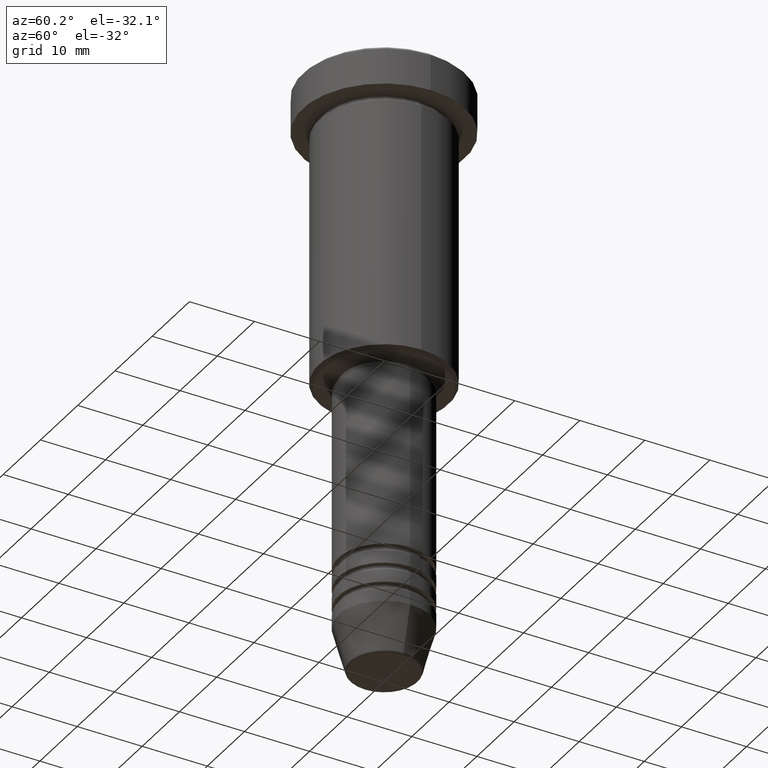
[diagram: clean part render]
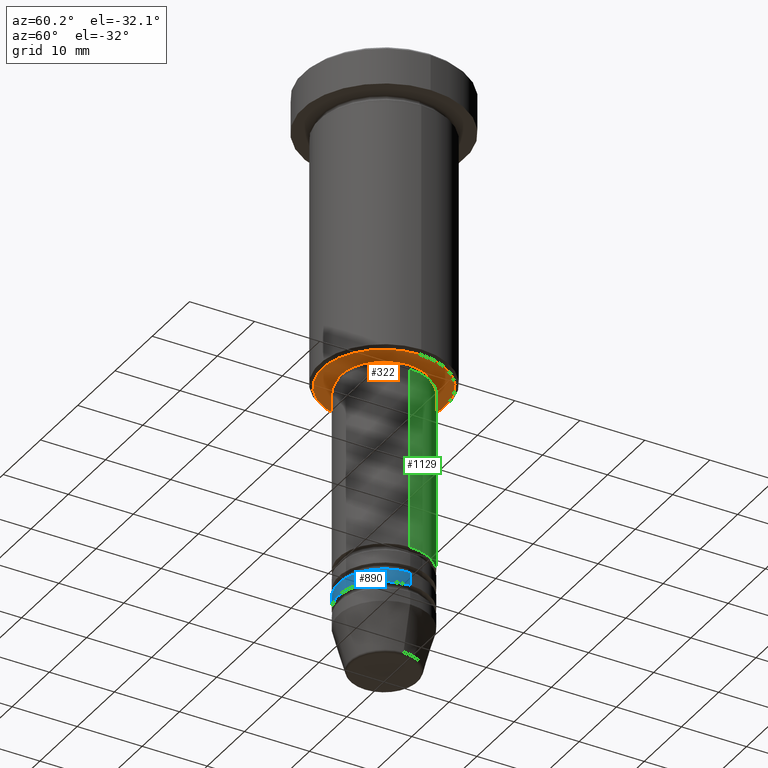
[diagram: same view with three faces highlighted in distinct colors, each labeled with its STEP entity id]
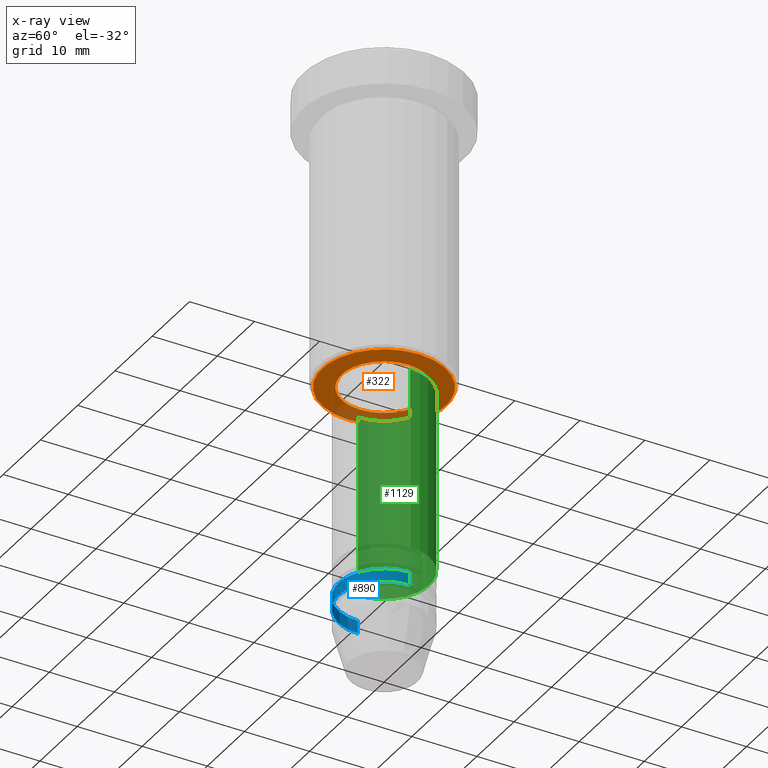
[diagram: x-ray of the same camera — body ghosted, the three highlighted faces saturated]
A machine part, auxiliary view with three faces highlighted in distinct colors.
The next image is the same camera in x-ray (body ghosted, the three faces saturated) — at least one of them is partly hidden behind the body in this view.
Their STEP definitions:

[orange] entity #322 — the highlighted planar face has unit normal (0, 0, -1).
#6 = EDGE_LOOP ( 'NONE', ( #586, #580 ) ) ;
#16 = AXIS2_PLACEMENT_3D ( 'NONE', #551, #948, #1113 ) ;
#27 = EDGE_LOOP ( 'NONE', ( #892, #854 ) ) ;
#65 = AXIS2_PLACEMENT_3D ( 'NONE', #703, #1078, #704 ) ;
#157 = CIRCLE ( 'NONE', #16, 9.500000000000028422 ) ;
#166 = DIRECTION ( 'NONE',  ( 1.000000000000000000, 0.000000000000000000, 0.000000000000000000 ) ) ;
#172 = EDGE_CURVE ( 'NONE', #308, #186, #157, .T. ) ;
#186 = VERTEX_POINT ( 'NONE', #758 ) ;
#198 = CARTESIAN_POINT ( 'NONE',  ( 0.000000000000000000, 0.000000000000000000, -46.00000000000000000 ) ) ;
#308 = VERTEX_POINT ( 'NONE', #419 ) ;
#321 = CARTESIAN_POINT ( 'NONE',  ( 0.000000000000000000, 10.00000000000000000, -46.00000000000000000 ) ) ;
#322 = ADVANCED_FACE ( 'NONE', ( #774, #867 ), #1151, .T. ) ;
#324 = DIRECTION ( 'NONE',  ( -1.000000000000000000, 0.000000000000000000, -0.000000000000000000 ) ) ;
#419 = CARTESIAN_POINT ( 'NONE',  ( 9.500000000000028422, 0.000000000000000000, -46.00000000000000000 ) ) ;
#450 = VERTEX_POINT ( 'NONE', #788 ) ;
#460 = EDGE_CURVE ( 'NONE', #186, #308, #657, .T. ) ;
#507 = AXIS2_PLACEMENT_3D ( 'NONE', #198, #937, #831 ) ;
#551 = CARTESIAN_POINT ( 'NONE',  ( 0.000000000000000000, 0.000000000000000000, -46.00000000000000000 ) ) ;
#556 = VERTEX_POINT ( 'NONE', #1085 ) ;
#571 = EDGE_CURVE ( 'NONE', #450, #556, #659, .T. ) ;
#580 = ORIENTED_EDGE ( 'NONE', *, *, #460, .T. ) ;
#586 = ORIENTED_EDGE ( 'NONE', *, *, #172, .T. ) ;
#598 = AXIS2_PLACEMENT_3D ( 'NONE', #321, #684, #324 ) ;
#618 = CARTESIAN_POINT ( 'NONE',  ( 0.000000000000000000, 0.000000000000000000, -46.00000000000000000 ) ) ;
#657 = CIRCLE ( 'NONE', #65, 9.500000000000028422 ) ;
#659 = CIRCLE ( 'NONE', #1069, 6.500000000000000000 ) ;
#684 = DIRECTION ( 'NONE',  ( 0.000000000000000000, 0.000000000000000000, -1.000000000000000000 ) ) ;
#703 = CARTESIAN_POINT ( 'NONE',  ( 0.000000000000000000, 0.000000000000000000, -46.00000000000000000 ) ) ;
#704 = DIRECTION ( 'NONE',  ( -1.000000000000000000, 0.000000000000000000, 0.000000000000000000 ) ) ;
#758 = CARTESIAN_POINT ( 'NONE',  ( -9.500000000000028422, 1.194030629168671244E-15, -46.00000000000000000 ) ) ;
#774 = FACE_OUTER_BOUND ( 'NONE', #6, .T. ) ;
#775 = EDGE_CURVE ( 'NONE', #556, #450, #1130, .T. ) ;
#788 = CARTESIAN_POINT ( 'NONE',  ( 6.500000000000000000, 0.000000000000000000, -46.00000000000000000 ) ) ;
#831 = DIRECTION ( 'NONE',  ( 1.000000000000000000, 0.000000000000000000, 0.000000000000000000 ) ) ;
#854 = ORIENTED_EDGE ( 'NONE', *, *, #775, .T. ) ;
#867 = FACE_BOUND ( 'NONE', #27, .T. ) ;
#892 = ORIENTED_EDGE ( 'NONE', *, *, #571, .T. ) ;
#937 = DIRECTION ( 'NONE',  ( -0.000000000000000000, -0.000000000000000000, 1.000000000000000000 ) ) ;
#948 = DIRECTION ( 'NONE',  ( 0.000000000000000000, 0.000000000000000000, -1.000000000000000000 ) ) ;
#994 = DIRECTION ( 'NONE',  ( -0.000000000000000000, -0.000000000000000000, 1.000000000000000000 ) ) ;
#1069 = AXIS2_PLACEMENT_3D ( 'NONE', #618, #994, #166 ) ;
#1078 = DIRECTION ( 'NONE',  ( 0.000000000000000000, 0.000000000000000000, -1.000000000000000000 ) ) ;
#1085 = CARTESIAN_POINT ( 'NONE',  ( -6.500000000000000000, 7.960204194457795477E-16, -46.00000000000000000 ) ) ;
#1113 = DIRECTION ( 'NONE',  ( -1.000000000000000000, 0.000000000000000000, 0.000000000000000000 ) ) ;
#1130 = CIRCLE ( 'NONE', #507, 6.500000000000000000 ) ;
#1151 = PLANE ( 'NONE',  #598 ) ;

[blue] entity #890 — the highlighted cylindrical surface (partial cylindrical patch) has radius 7 mm, axis along (-0, -0, 1).
#1 = CARTESIAN_POINT ( 'NONE',  ( -7.000000000000000000, 8.572527594031473190E-16, -78.99999999999997158 ) ) ;
#128 = EDGE_CURVE ( 'NONE', #498, #625, #710, .T. ) ;
#150 = DIRECTION ( 'NONE',  ( 1.000000000000000000, 0.000000000000000000, 0.000000000000000000 ) ) ;
#159 = CARTESIAN_POINT ( 'NONE',  ( 0.000000000000000000, 0.000000000000000000, -78.99999999999997158 ) ) ;
#204 = LINE ( 'NONE', #1023, #1048 ) ;
#211 = EDGE_CURVE ( 'NONE', #625, #1133, #204, .T. ) ;
#269 = ORIENTED_EDGE ( 'NONE', *, *, #863, .F. ) ;
#292 = CARTESIAN_POINT ( 'NONE',  ( -7.000000000000000000, 8.572527594031473190E-16, 0.000000000000000000 ) ) ;
#303 = ORIENTED_EDGE ( 'NONE', *, *, #211, .T. ) ;
#312 = FACE_OUTER_BOUND ( 'NONE', #494, .T. ) ;
#337 = ORIENTED_EDGE ( 'NONE', *, *, #1019, .F. ) ;
#355 = CIRCLE ( 'NONE', #1034, 7.000000000000000000 ) ;
#392 = CYLINDRICAL_SURFACE ( 'NONE', #416, 7.000000000000000000 ) ;
#416 = AXIS2_PLACEMENT_3D ( 'NONE', #857, #769, #1008 ) ;
#463 = DIRECTION ( 'NONE',  ( 1.000000000000000000, 0.000000000000000000, 0.000000000000000000 ) ) ;
#494 = EDGE_LOOP ( 'NONE', ( #269, #722, #303, #337 ) ) ;
#498 = VERTEX_POINT ( 'NONE', #731 ) ;
#557 = DIRECTION ( 'NONE',  ( -0.000000000000000000, -0.000000000000000000, 1.000000000000000000 ) ) ;
#620 = CARTESIAN_POINT ( 'NONE',  ( 7.000000000000000000, 0.000000000000000000, -80.99999999999997158 ) ) ;
#625 = VERTEX_POINT ( 'NONE', #620 ) ;
#680 = VECTOR ( 'NONE', #962, 1000.000000000000000 ) ;
#710 = CIRCLE ( 'NONE', #803, 7.000000000000000000 ) ;
#722 = ORIENTED_EDGE ( 'NONE', *, *, #128, .T. ) ;
#731 = CARTESIAN_POINT ( 'NONE',  ( -7.000000000000000000, 8.572527594031473190E-16, -80.99999999999997158 ) ) ;
#769 = DIRECTION ( 'NONE',  ( -0.000000000000000000, -0.000000000000000000, 1.000000000000000000 ) ) ;
#803 = AXIS2_PLACEMENT_3D ( 'NONE', #1120, #818, #463 ) ;
#818 = DIRECTION ( 'NONE',  ( -0.000000000000000000, -0.000000000000000000, 1.000000000000000000 ) ) ;
#857 = CARTESIAN_POINT ( 'NONE',  ( 0.000000000000000000, 0.000000000000000000, 0.000000000000000000 ) ) ;
#863 = EDGE_CURVE ( 'NONE', #498, #1098, #1121, .T. ) ;
#890 = ADVANCED_FACE ( 'NONE', ( #312 ), #392, .T. ) ;
#922 = CARTESIAN_POINT ( 'NONE',  ( 7.000000000000000000, 0.000000000000000000, -78.99999999999997158 ) ) ;
#962 = DIRECTION ( 'NONE',  ( -0.000000000000000000, -0.000000000000000000, 1.000000000000000000 ) ) ;
#967 = DIRECTION ( 'NONE',  ( -0.000000000000000000, -0.000000000000000000, 1.000000000000000000 ) ) ;
#1008 = DIRECTION ( 'NONE',  ( 1.000000000000000000, 0.000000000000000000, 0.000000000000000000 ) ) ;
#1019 = EDGE_CURVE ( 'NONE', #1098, #1133, #355, .T. ) ;
#1023 = CARTESIAN_POINT ( 'NONE',  ( 7.000000000000000000, 0.000000000000000000, 0.000000000000000000 ) ) ;
#1034 = AXIS2_PLACEMENT_3D ( 'NONE', #159, #967, #150 ) ;
#1048 = VECTOR ( 'NONE', #557, 1000.000000000000000 ) ;
#1098 = VERTEX_POINT ( 'NONE', #1 ) ;
#1120 = CARTESIAN_POINT ( 'NONE',  ( 0.000000000000000000, 0.000000000000000000, -80.99999999999997158 ) ) ;
#1121 = LINE ( 'NONE', #292, #680 ) ;
#1133 = VERTEX_POINT ( 'NONE', #922 ) ;

[green] entity #1129 — the highlighted cylindrical surface (partial cylindrical patch) has radius 7 mm, axis along (-0, -0, 1).
#35 = CARTESIAN_POINT ( 'NONE',  ( -7.000000000000000000, 8.572527594031473190E-16, 0.000000000000000000 ) ) ;
#41 = ORIENTED_EDGE ( 'NONE', *, *, #933, .F. ) ;
#78 = FACE_OUTER_BOUND ( 'NONE', #283, .T. ) ;
#87 = DIRECTION ( 'NONE',  ( 1.000000000000000000, 0.000000000000000000, 0.000000000000000000 ) ) ;
#98 = EDGE_CURVE ( 'NONE', #589, #1047, #284, .T. ) ;
#113 = ORIENTED_EDGE ( 'NONE', *, *, #360, .F. ) ;
#146 = VECTOR ( 'NONE', #688, 1000.000000000000000 ) ;
#230 = CARTESIAN_POINT ( 'NONE',  ( 7.000000000000000000, 0.000000000000000000, -46.99999999999997158 ) ) ;
#277 = VERTEX_POINT ( 'NONE', #230 ) ;
#283 = EDGE_LOOP ( 'NONE', ( #354, #766, #113, #41 ) ) ;
#284 = LINE ( 'NONE', #35, #328 ) ;
#328 = VECTOR ( 'NONE', #577, 1000.000000000000000 ) ;
#353 = DIRECTION ( 'NONE',  ( 1.000000000000000000, 0.000000000000000000, 0.000000000000000000 ) ) ;
#354 = ORIENTED_EDGE ( 'NONE', *, *, #583, .T. ) ;
#360 = EDGE_CURVE ( 'NONE', #277, #1047, #414, .T. ) ;
#379 = CIRCLE ( 'NONE', #969, 7.000000000000000000 ) ;
#414 = CIRCLE ( 'NONE', #1158, 7.000000000000000000 ) ;
#417 = AXIS2_PLACEMENT_3D ( 'NONE', #538, #896, #353 ) ;
#518 = CARTESIAN_POINT ( 'NONE',  ( 7.000000000000000000, 0.000000000000000000, 0.000000000000000000 ) ) ;
#527 = CARTESIAN_POINT ( 'NONE',  ( -7.000000000000000000, 8.572527594031473190E-16, -46.99999999999997158 ) ) ;
#532 = CARTESIAN_POINT ( 'NONE',  ( 7.000000000000000000, 0.000000000000000000, -74.99999999999997158 ) ) ;
#538 = CARTESIAN_POINT ( 'NONE',  ( 0.000000000000000000, 0.000000000000000000, 0.000000000000000000 ) ) ;
#577 = DIRECTION ( 'NONE',  ( -0.000000000000000000, -0.000000000000000000, 1.000000000000000000 ) ) ;
#583 = EDGE_CURVE ( 'NONE', #1119, #589, #379, .T. ) ;
#589 = VERTEX_POINT ( 'NONE', #717 ) ;
#688 = DIRECTION ( 'NONE',  ( -0.000000000000000000, -0.000000000000000000, 1.000000000000000000 ) ) ;
#717 = CARTESIAN_POINT ( 'NONE',  ( -7.000000000000000000, 8.572527594031473190E-16, -74.99999999999997158 ) ) ;
#766 = ORIENTED_EDGE ( 'NONE', *, *, #98, .T. ) ;
#814 = DIRECTION ( 'NONE',  ( -0.000000000000000000, -0.000000000000000000, 1.000000000000000000 ) ) ;
#896 = DIRECTION ( 'NONE',  ( -0.000000000000000000, -0.000000000000000000, 1.000000000000000000 ) ) ;
#933 = EDGE_CURVE ( 'NONE', #1119, #277, #1066, .T. ) ;
#969 = AXIS2_PLACEMENT_3D ( 'NONE', #1006, #814, #87 ) ;
#1003 = CYLINDRICAL_SURFACE ( 'NONE', #417, 7.000000000000000000 ) ;
#1006 = CARTESIAN_POINT ( 'NONE',  ( 0.000000000000000000, 0.000000000000000000, -74.99999999999997158 ) ) ;
#1046 = DIRECTION ( 'NONE',  ( -0.000000000000000000, -0.000000000000000000, 1.000000000000000000 ) ) ;
#1047 = VERTEX_POINT ( 'NONE', #527 ) ;
#1055 = DIRECTION ( 'NONE',  ( 1.000000000000000000, 0.000000000000000000, 0.000000000000000000 ) ) ;
#1066 = LINE ( 'NONE', #518, #146 ) ;
#1067 = CARTESIAN_POINT ( 'NONE',  ( 0.000000000000000000, 0.000000000000000000, -46.99999999999997158 ) ) ;
#1119 = VERTEX_POINT ( 'NONE', #532 ) ;
#1129 = ADVANCED_FACE ( 'NONE', ( #78 ), #1003, .T. ) ;
#1158 = AXIS2_PLACEMENT_3D ( 'NONE', #1067, #1046, #1055 ) ;